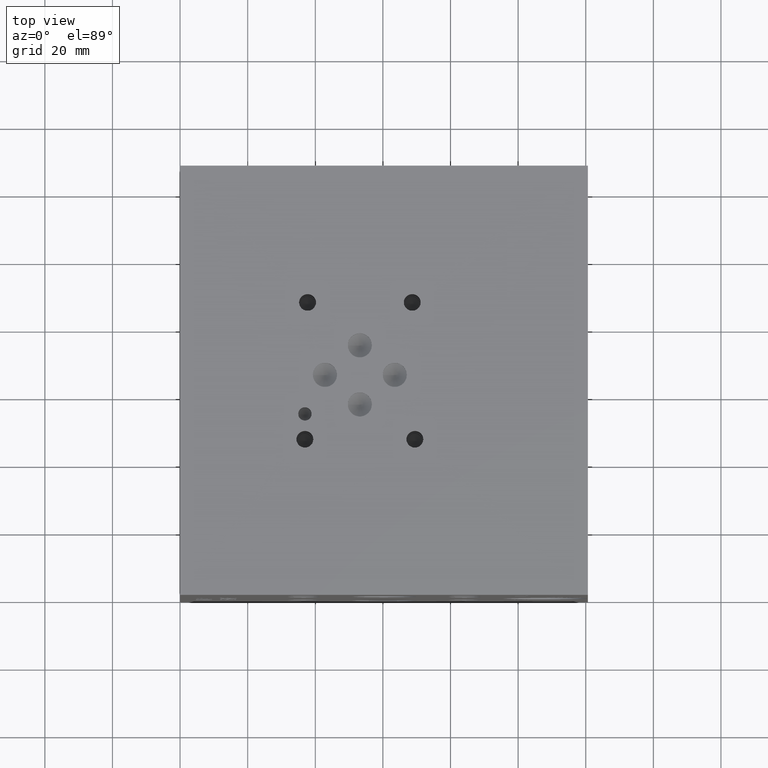
[diagram: clean part render]
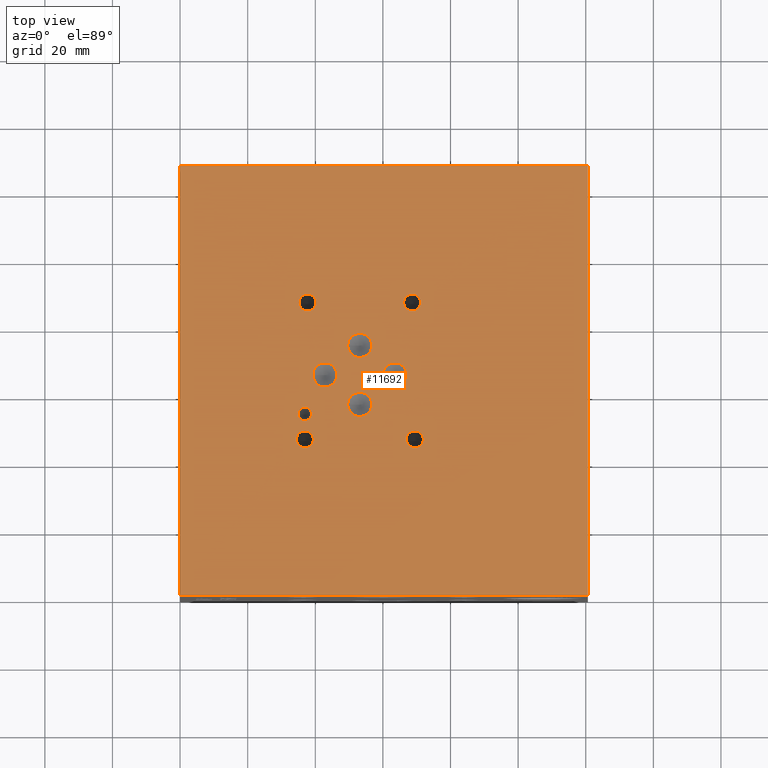
[diagram: same view with one face highlighted and labeled with its STEP entity id]
A machine part, top view. The second image highlights one B-rep face of the part: STEP entity #11692.
In plain terms, the highlighted planar face has unit normal (0, 0, 1).
Its self-contained STEP definition (entity closure, byte-faithful):
#382=CIRCLE('',#12407,3.5687);
#383=CIRCLE('',#12408,3.5687);
#386=CIRCLE('',#12413,3.5687);
#387=CIRCLE('',#12414,3.5687);
#390=CIRCLE('',#12419,3.5687);
#391=CIRCLE('',#12420,3.5687);
#394=CIRCLE('',#12425,3.5687);
#395=CIRCLE('',#12426,3.5687);
#398=CIRCLE('',#12431,1.9812);
#399=CIRCLE('',#12432,1.9812);
#405=CIRCLE('',#12441,2.5019);
#406=CIRCLE('',#12442,2.5019);
#412=CIRCLE('',#12452,2.5019);
#413=CIRCLE('',#12453,2.5019);
#419=CIRCLE('',#12463,2.5019);
#420=CIRCLE('',#12464,2.5019);
#426=CIRCLE('',#12474,2.5019);
#427=CIRCLE('',#12475,2.5019);
#538=FACE_BOUND('',#2192,.T.);
#539=FACE_BOUND('',#2193,.T.);
#540=FACE_BOUND('',#2194,.T.);
#541=FACE_BOUND('',#2195,.T.);
#542=FACE_BOUND('',#2196,.T.);
#543=FACE_BOUND('',#2197,.T.);
#544=FACE_BOUND('',#2198,.T.);
#545=FACE_BOUND('',#2199,.T.);
#546=FACE_BOUND('',#2200,.T.);
#1481=FACE_OUTER_BOUND('',#2191,.T.);
#2191=EDGE_LOOP('',(#10287,#10288,#10289,#10290));
#2192=EDGE_LOOP('',(#10291,#10292));
#2193=EDGE_LOOP('',(#10293,#10294));
#2194=EDGE_LOOP('',(#10295,#10296));
#2195=EDGE_LOOP('',(#10297,#10298));
#2196=EDGE_LOOP('',(#10299,#10300));
#2197=EDGE_LOOP('',(#10301,#10302));
#2198=EDGE_LOOP('',(#10303,#10304));
#2199=EDGE_LOOP('',(#10305,#10306));
#2200=EDGE_LOOP('',(#10307,#10308));
#2260=LINE('',#15384,#3351);
#2320=LINE('',#15691,#3411);
#2641=LINE('',#17409,#3732);
#3292=LINE('',#19903,#4383);
#3351=VECTOR('',#12581,10.);
#3411=VECTOR('',#12727,10.);
#3732=VECTOR('',#13290,10.);
#4383=VECTOR('',#15117,10.);
#4434=VERTEX_POINT('',#15381);
#4435=VERTEX_POINT('',#15383);
#4510=VERTEX_POINT('',#15688);
#4511=VERTEX_POINT('',#15690);
#5453=VERTEX_POINT('',#19755);
#5454=VERTEX_POINT('',#19756);
#5458=VERTEX_POINT('',#19768);
#5459=VERTEX_POINT('',#19769);
#5463=VERTEX_POINT('',#19781);
#5464=VERTEX_POINT('',#19782);
#5468=VERTEX_POINT('',#19794);
#5469=VERTEX_POINT('',#19795);
#5473=VERTEX_POINT('',#19807);
#5474=VERTEX_POINT('',#19808);
#5481=VERTEX_POINT('',#19827);
#5482=VERTEX_POINT('',#19828);
#5489=VERTEX_POINT('',#19849);
#5490=VERTEX_POINT('',#19850);
#5497=VERTEX_POINT('',#19871);
#5498=VERTEX_POINT('',#19872);
#5505=VERTEX_POINT('',#19893);
#5506=VERTEX_POINT('',#19894);
#5581=EDGE_CURVE('',#4435,#4434,#2260,.T.);
#5681=EDGE_CURVE('',#4511,#4510,#2320,.T.);
#6146=EDGE_CURVE('',#4510,#4435,#2641,.T.);
#7040=EDGE_CURVE('',#5453,#5454,#382,.T.);
#7041=EDGE_CURVE('',#5454,#5453,#383,.T.);
#7046=EDGE_CURVE('',#5458,#5459,#386,.T.);
#7047=EDGE_CURVE('',#5459,#5458,#387,.T.);
#7052=EDGE_CURVE('',#5463,#5464,#390,.T.);
#7053=EDGE_CURVE('',#5464,#5463,#391,.T.);
#7058=EDGE_CURVE('',#5468,#5469,#394,.T.);
#7059=EDGE_CURVE('',#5469,#5468,#395,.T.);
#7064=EDGE_CURVE('',#5473,#5474,#398,.T.);
#7065=EDGE_CURVE('',#5474,#5473,#399,.T.);
#7073=EDGE_CURVE('',#5481,#5482,#405,.T.);
#7074=EDGE_CURVE('',#5482,#5481,#406,.T.);
#7083=EDGE_CURVE('',#5489,#5490,#412,.T.);
#7084=EDGE_CURVE('',#5490,#5489,#413,.T.);
#7093=EDGE_CURVE('',#5497,#5498,#419,.T.);
#7094=EDGE_CURVE('',#5498,#5497,#420,.T.);
#7103=EDGE_CURVE('',#5505,#5506,#426,.T.);
#7104=EDGE_CURVE('',#5506,#5505,#427,.T.);
#7108=EDGE_CURVE('',#4434,#4511,#3292,.T.);
#10287=ORIENTED_EDGE('',*,*,#6146,.T.);
#10288=ORIENTED_EDGE('',*,*,#5581,.T.);
#10289=ORIENTED_EDGE('',*,*,#7108,.T.);
#10290=ORIENTED_EDGE('',*,*,#5681,.T.);
#10291=ORIENTED_EDGE('',*,*,#7040,.T.);
#10292=ORIENTED_EDGE('',*,*,#7041,.T.);
#10293=ORIENTED_EDGE('',*,*,#7046,.T.);
#10294=ORIENTED_EDGE('',*,*,#7047,.T.);
#10295=ORIENTED_EDGE('',*,*,#7052,.T.);
#10296=ORIENTED_EDGE('',*,*,#7053,.T.);
#10297=ORIENTED_EDGE('',*,*,#7058,.T.);
#10298=ORIENTED_EDGE('',*,*,#7059,.T.);
#10299=ORIENTED_EDGE('',*,*,#7064,.T.);
#10300=ORIENTED_EDGE('',*,*,#7065,.T.);
#10301=ORIENTED_EDGE('',*,*,#7073,.T.);
#10302=ORIENTED_EDGE('',*,*,#7074,.T.);
#10303=ORIENTED_EDGE('',*,*,#7083,.T.);
#10304=ORIENTED_EDGE('',*,*,#7084,.T.);
#10305=ORIENTED_EDGE('',*,*,#7093,.T.);
#10306=ORIENTED_EDGE('',*,*,#7094,.T.);
#10307=ORIENTED_EDGE('',*,*,#7103,.T.);
#10308=ORIENTED_EDGE('',*,*,#7104,.T.);
#10672=PLANE('',#12481);
#11692=ADVANCED_FACE('',(#1481,#538,#539,#540,#541,#542,#543,#544,#545,
#546),#10672,.T.);
#12407=AXIS2_PLACEMENT_3D('',#19757,#14951,#14952);
#12408=AXIS2_PLACEMENT_3D('',#19758,#14953,#14954);
#12413=AXIS2_PLACEMENT_3D('',#19770,#14965,#14966);
#12414=AXIS2_PLACEMENT_3D('',#19771,#14967,#14968);
#12419=AXIS2_PLACEMENT_3D('',#19783,#14979,#14980);
#12420=AXIS2_PLACEMENT_3D('',#19784,#14981,#14982);
#12425=AXIS2_PLACEMENT_3D('',#19796,#14993,#14994);
#12426=AXIS2_PLACEMENT_3D('',#19797,#14995,#14996);
#12431=AXIS2_PLACEMENT_3D('',#19809,#15007,#15008);
#12432=AXIS2_PLACEMENT_3D('',#19810,#15009,#15010);
#12441=AXIS2_PLACEMENT_3D('',#19829,#15029,#15030);
#12442=AXIS2_PLACEMENT_3D('',#19830,#15031,#15032);
#12452=AXIS2_PLACEMENT_3D('',#19851,#15054,#15055);
#12453=AXIS2_PLACEMENT_3D('',#19852,#15056,#15057);
#12463=AXIS2_PLACEMENT_3D('',#19873,#15079,#15080);
#12464=AXIS2_PLACEMENT_3D('',#19874,#15081,#15082);
#12474=AXIS2_PLACEMENT_3D('',#19895,#15104,#15105);
#12475=AXIS2_PLACEMENT_3D('',#19896,#15106,#15107);
#12481=AXIS2_PLACEMENT_3D('',#19906,#15122,#15123);
#12581=DIRECTION('',(0.,1.,0.));
#12727=DIRECTION('',(0.,-1.,0.));
#13290=DIRECTION('',(1.,0.,0.));
#14951=DIRECTION('center_axis',(0.,0.,-1.));
#14952=DIRECTION('ref_axis',(1.,0.,0.));
#14953=DIRECTION('center_axis',(0.,0.,-1.));
#14954=DIRECTION('ref_axis',(1.,0.,0.));
#14965=DIRECTION('center_axis',(0.,0.,-1.));
#14966=DIRECTION('ref_axis',(1.,0.,0.));
#14967=DIRECTION('center_axis',(0.,0.,-1.));
#14968=DIRECTION('ref_axis',(1.,0.,0.));
#14979=DIRECTION('center_axis',(0.,0.,-1.));
#14980=DIRECTION('ref_axis',(1.,0.,0.));
#14981=DIRECTION('center_axis',(0.,0.,-1.));
#14982=DIRECTION('ref_axis',(1.,0.,0.));
#14993=DIRECTION('center_axis',(0.,0.,-1.));
#14994=DIRECTION('ref_axis',(1.,0.,0.));
#14995=DIRECTION('center_axis',(0.,0.,-1.));
#14996=DIRECTION('ref_axis',(1.,0.,0.));
#15007=DIRECTION('center_axis',(0.,0.,-1.));
#15008=DIRECTION('ref_axis',(1.,0.,0.));
#15009=DIRECTION('center_axis',(0.,0.,-1.));
#15010=DIRECTION('ref_axis',(1.,0.,0.));
#15029=DIRECTION('center_axis',(0.,0.,-1.));
#15030=DIRECTION('ref_axis',(1.,0.,0.));
#15031=DIRECTION('center_axis',(0.,0.,-1.));
#15032=DIRECTION('ref_axis',(1.,0.,0.));
#15054=DIRECTION('center_axis',(0.,0.,-1.));
#15055=DIRECTION('ref_axis',(1.,0.,0.));
#15056=DIRECTION('center_axis',(0.,0.,-1.));
#15057=DIRECTION('ref_axis',(1.,0.,0.));
#15079=DIRECTION('center_axis',(0.,0.,-1.));
#15080=DIRECTION('ref_axis',(1.,0.,0.));
#15081=DIRECTION('center_axis',(0.,0.,-1.));
#15082=DIRECTION('ref_axis',(1.,0.,0.));
#15104=DIRECTION('center_axis',(0.,0.,-1.));
#15105=DIRECTION('ref_axis',(1.,0.,0.));
#15106=DIRECTION('center_axis',(0.,0.,-1.));
#15107=DIRECTION('ref_axis',(1.,0.,0.));
#15117=DIRECTION('',(-1.,0.,0.));
#15122=DIRECTION('center_axis',(0.,0.,1.));
#15123=DIRECTION('ref_axis',(1.,0.,0.));
#15381=CARTESIAN_POINT('',(120.65,127.,127.));
#15383=CARTESIAN_POINT('',(120.65,0.,127.));
#15384=CARTESIAN_POINT('',(120.65,0.,127.));
#15688=CARTESIAN_POINT('',(0.,0.,127.));
#15690=CARTESIAN_POINT('',(0.,127.,127.));
#15691=CARTESIAN_POINT('',(0.,127.,127.));
#17409=CARTESIAN_POINT('',(0.,0.,127.));
#19755=CARTESIAN_POINT('',(56.7309,73.8124,127.));
#19756=CARTESIAN_POINT('',(49.5935,73.8124,127.));
#19757=CARTESIAN_POINT('Origin',(53.1622,73.8124,127.));
#19758=CARTESIAN_POINT('Origin',(53.1622,73.8124,127.));
#19768=CARTESIAN_POINT('',(46.4185,65.0748,127.));
#19769=CARTESIAN_POINT('',(39.2811,65.0748,127.));
#19770=CARTESIAN_POINT('Origin',(42.8498,65.0748,127.));
#19771=CARTESIAN_POINT('Origin',(42.8498,65.0748,127.));
#19781=CARTESIAN_POINT('',(67.0687,65.0748,127.));
#19782=CARTESIAN_POINT('',(59.9313,65.0748,127.));
#19783=CARTESIAN_POINT('Origin',(63.5,65.0748,127.));
#19784=CARTESIAN_POINT('Origin',(63.5,65.0748,127.));
#19794=CARTESIAN_POINT('',(56.7309,56.3372,127.));
#19795=CARTESIAN_POINT('',(49.5935,56.3372,127.));
#19796=CARTESIAN_POINT('Origin',(53.1622,56.3372,127.));
#19797=CARTESIAN_POINT('Origin',(53.1622,56.3372,127.));
#19807=CARTESIAN_POINT('',(38.8874,53.5178,127.));
#19808=CARTESIAN_POINT('',(34.925,53.5178,127.));
#19809=CARTESIAN_POINT('Origin',(36.9062,53.5178,127.));
#19810=CARTESIAN_POINT('Origin',(36.9062,53.5178,127.));
#19827=CARTESIAN_POINT('',(71.9455,46.0248,127.));
#19828=CARTESIAN_POINT('',(66.9417,46.0248,127.));
#19829=CARTESIAN_POINT('Origin',(69.4436,46.0248,127.));
#19830=CARTESIAN_POINT('Origin',(69.4436,46.0248,127.));
#19849=CARTESIAN_POINT('',(40.1955,86.5124,127.));
#19850=CARTESIAN_POINT('',(35.1917,86.5124,127.));
#19851=CARTESIAN_POINT('Origin',(37.6936,86.5124,127.));
#19852=CARTESIAN_POINT('Origin',(37.6936,86.5124,127.));
#19871=CARTESIAN_POINT('',(71.1581,86.5124,127.));
#19872=CARTESIAN_POINT('',(66.1543,86.5124,127.));
#19873=CARTESIAN_POINT('Origin',(68.6562,86.5124,127.));
#19874=CARTESIAN_POINT('Origin',(68.6562,86.5124,127.));
#19893=CARTESIAN_POINT('',(39.4081,46.0248,127.));
#19894=CARTESIAN_POINT('',(34.4043,46.0248,127.));
#19895=CARTESIAN_POINT('Origin',(36.9062,46.0248,127.));
#19896=CARTESIAN_POINT('Origin',(36.9062,46.0248,127.));
#19903=CARTESIAN_POINT('',(120.65,127.,127.));
#19906=CARTESIAN_POINT('Origin',(60.325,63.5,127.));